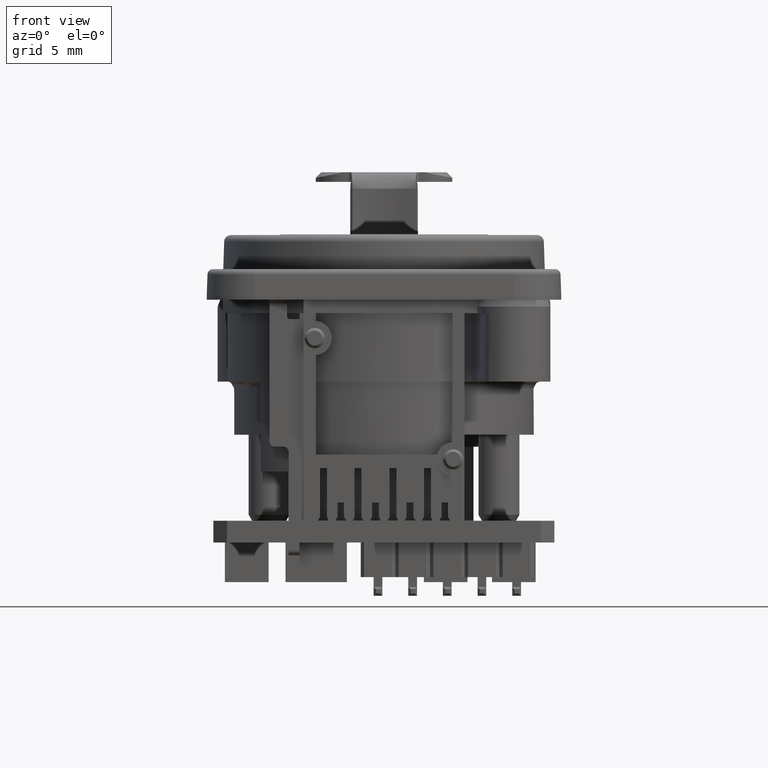
[diagram: clean part render]
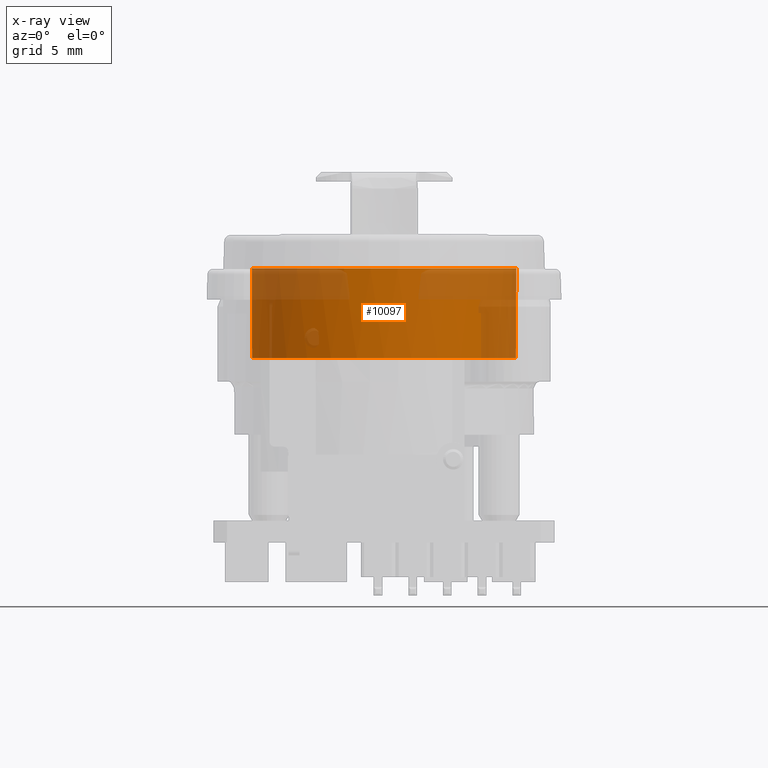
[diagram: x-ray — body ghosted, one internal face saturated and labeled with its STEP entity id]
A machine part, front view, then the same camera in x-ray: the body is ghosted and one INTERNAL B-rep face — a face not visible from any outside direction — is saturated and labeled: STEP entity #10097.
In plain terms, the highlighted cylindrical surface (partial cylindrical patch) has radius 9.7062 mm, axis along (0, 0, 1).
Its self-contained STEP definition (entity closure, byte-faithful):
#690=CARTESIAN_POINT('',(0.E0,0.E0,-2.5E0));
#691=DIRECTION('',(0.E0,0.E0,1.E0));
#692=DIRECTION('',(-5.505012624323E-1,8.348343309067E-1,0.E0));
#693=AXIS2_PLACEMENT_3D('',#690,#691,#692);
#708=DIRECTION('',(0.E0,0.E0,1.E0));
#709=VECTOR('',#708,2.3E0);
#710=CARTESIAN_POINT('',(-5.343268177276E0,8.103058100034E0,-4.8E0));
#711=LINE('',#710,#709);
#712=DIRECTION('',(0.E0,0.E0,1.E0));
#713=VECTOR('',#712,4.3E0);
#714=CARTESIAN_POINT('',(-5.935200586949E0,7.680068969709E0,-9.1E0));
#715=LINE('',#714,#713);
#732=CARTESIAN_POINT('',(0.E0,0.E0,-9.1E0));
#733=DIRECTION('',(0.E0,0.E0,1.E0));
#734=DIRECTION('',(-6.114863240068E-1,7.912550003335E-1,0.E0));
#735=AXIS2_PLACEMENT_3D('',#732,#733,#734);
#776=DIRECTION('',(0.E0,0.E0,1.E0));
#777=VECTOR('',#776,4.3E0);
#778=CARTESIAN_POINT('',(5.935200586949E0,7.680068969709E0,-9.1E0));
#779=LINE('',#778,#777);
#796=CARTESIAN_POINT('',(0.E0,0.E0,-4.8E0));
#797=DIRECTION('',(0.E0,0.E0,1.E0));
#798=DIRECTION('',(-5.505012624323E-1,8.348343309067E-1,0.E0));
#799=AXIS2_PLACEMENT_3D('',#796,#797,#798);
#810=CARTESIAN_POINT('',(0.E0,0.E0,-4.8E0));
#811=DIRECTION('',(0.E0,0.E0,1.E0));
#812=DIRECTION('',(6.114863240068E-1,7.912550003335E-1,0.E0));
#813=AXIS2_PLACEMENT_3D('',#810,#811,#812);
#1199=DIRECTION('',(0.E0,0.E0,1.E0));
#1200=VECTOR('',#1199,2.3E0);
#1201=CARTESIAN_POINT('',(5.343268139590E0,8.103058124884E0,-4.8E0));
#1202=LINE('',#1201,#1200);
#8277=CARTESIAN_POINT('',(-5.343268177276E0,8.103058100034E0,-2.5E0));
#8278=CARTESIAN_POINT('',(5.343268139590E0,8.103058124884E0,-2.5E0));
#8279=VERTEX_POINT('',#8277);
#8280=VERTEX_POINT('',#8278);
#8341=CARTESIAN_POINT('',(-5.935200586949E0,7.680068969709E0,-9.1E0));
#8342=CARTESIAN_POINT('',(-5.935200586949E0,7.680068969709E0,-4.8E0));
#8343=VERTEX_POINT('',#8341);
#8344=VERTEX_POINT('',#8342);
#8345=CARTESIAN_POINT('',(5.935200586949E0,7.680068969709E0,-9.1E0));
#8346=CARTESIAN_POINT('',(5.935200586949E0,7.680068969709E0,-4.8E0));
#8347=VERTEX_POINT('',#8345);
#8348=VERTEX_POINT('',#8346);
#8369=CARTESIAN_POINT('',(-5.343268177276E0,8.103058100034E0,-4.8E0));
#8370=VERTEX_POINT('',#8369);
#8371=CARTESIAN_POINT('',(5.343268139590E0,8.103058124884E0,-4.8E0));
#8372=VERTEX_POINT('',#8371);
#10075=CARTESIAN_POINT('',(0.E0,0.E0,-1.35E1));
#10076=DIRECTION('',(0.E0,0.E0,1.E0));
#10077=DIRECTION('',(1.E0,0.E0,0.E0));
#10078=AXIS2_PLACEMENT_3D('',#10075,#10076,#10077);
#10079=CYLINDRICAL_SURFACE('',#10078,9.706186964344E0);
#10081=ORIENTED_EDGE('',*,*,#10080,.T.);
#10083=ORIENTED_EDGE('',*,*,#10082,.F.);
#10085=ORIENTED_EDGE('',*,*,#10084,.T.);
#10086=ORIENTED_EDGE('',*,*,#9817,.T.);
#10088=ORIENTED_EDGE('',*,*,#10087,.F.);
#10090=ORIENTED_EDGE('',*,*,#10089,.F.);
#10092=ORIENTED_EDGE('',*,*,#10091,.F.);
#10094=ORIENTED_EDGE('',*,*,#10093,.F.);
#10095=EDGE_LOOP('',(#10081,#10083,#10085,#10086,#10088,#10090,#10092,#10094));
#10096=FACE_OUTER_BOUND('',#10095,.F.);
#10097=ADVANCED_FACE('',(#10096),#10079,.T.);
#694=CIRCLE('',#693,9.706186964344E0);
#736=CIRCLE('',#735,9.706186964344E0);
#800=CIRCLE('',#799,9.706186964344E0);
#814=CIRCLE('',#813,9.706186964344E0);
#9817=EDGE_CURVE('',#8279,#8280,#694,.T.);
#10080=EDGE_CURVE('',#8343,#8344,#715,.T.);
#10082=EDGE_CURVE('',#8370,#8344,#800,.T.);
#10084=EDGE_CURVE('',#8370,#8279,#711,.T.);
#10087=EDGE_CURVE('',#8372,#8280,#1202,.T.);
#10089=EDGE_CURVE('',#8348,#8372,#814,.T.);
#10091=EDGE_CURVE('',#8347,#8348,#779,.T.);
#10093=EDGE_CURVE('',#8343,#8347,#736,.T.);